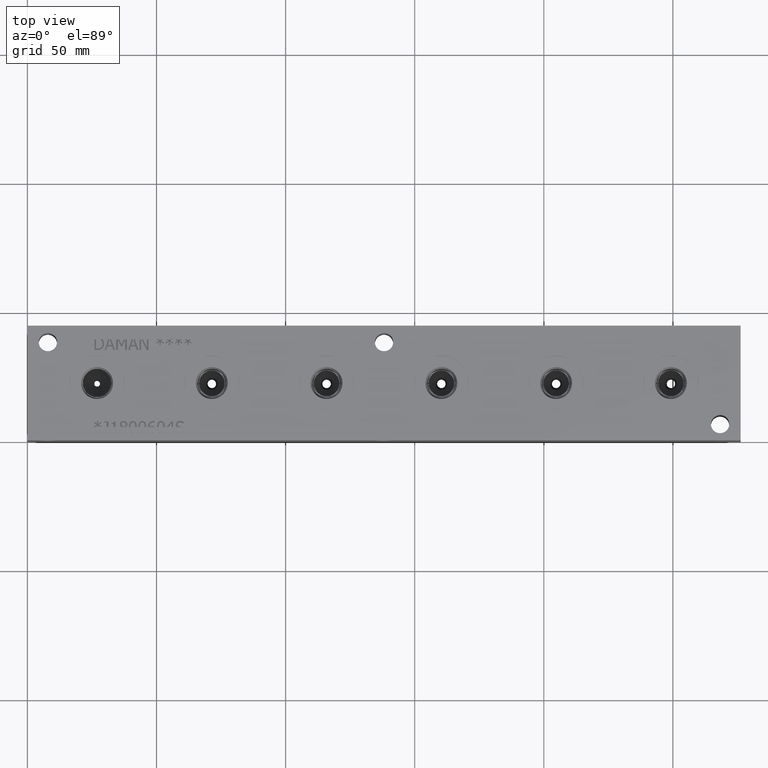
[diagram: clean part render]
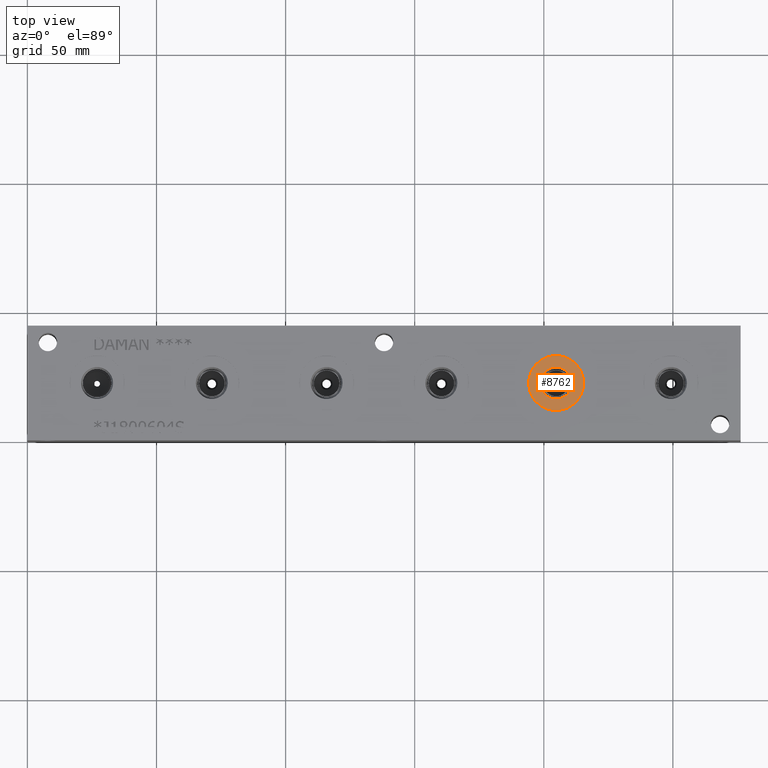
[diagram: same view with one face highlighted and labeled with its STEP entity id]
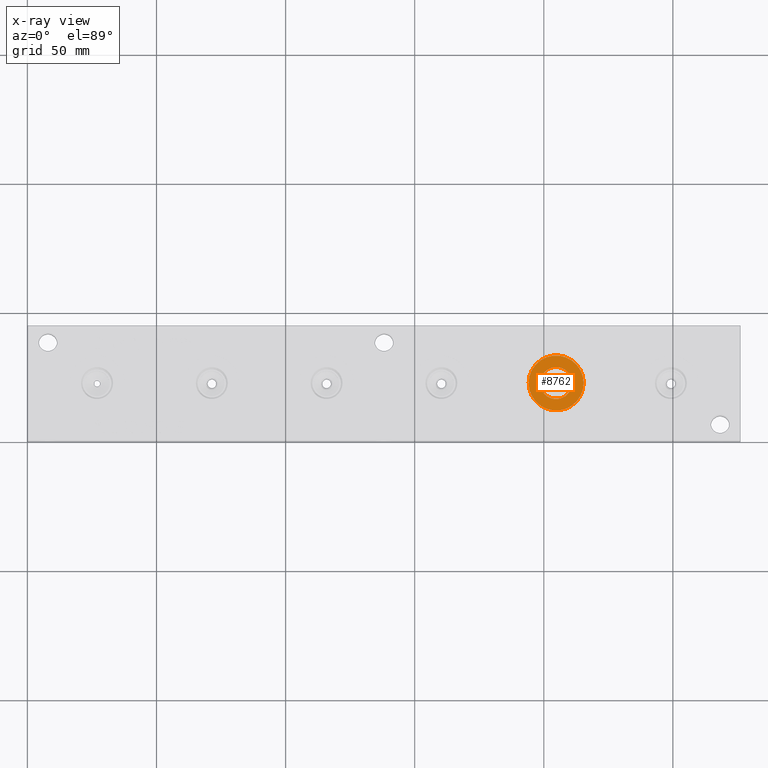
[diagram: x-ray of the same camera — body ghosted, the highlighted face saturated]
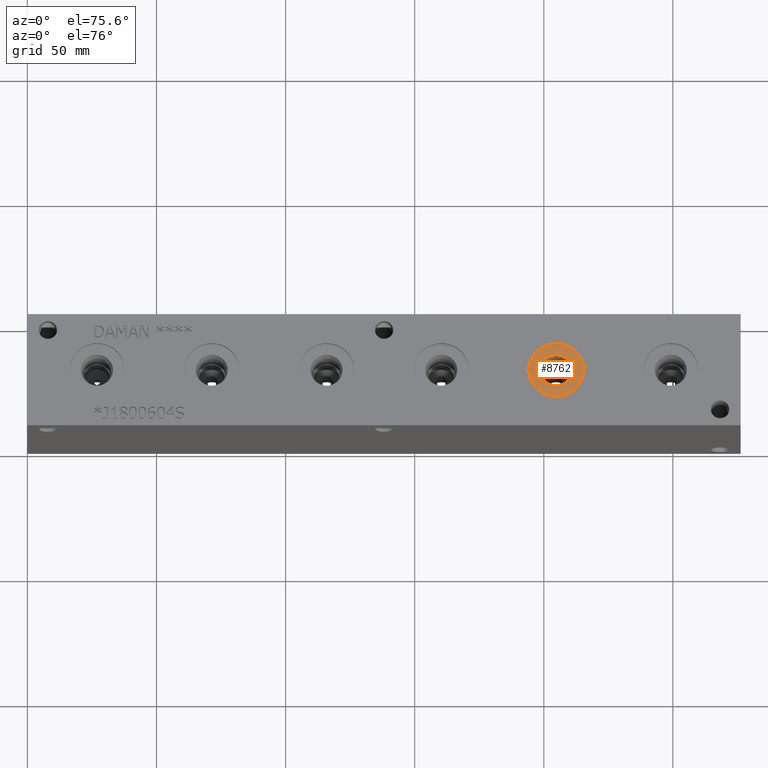
[diagram: same view with one face highlighted and labeled with its STEP entity id]
A machine part, top view. The second image highlights one B-rep face of the part: STEP entity #8762.
The next image is the same camera in x-ray: the body ghosted, the highlighted face saturated — about 0% of this face is hidden behind the body in this view.
A second angle (auxiliary view) of the same face is appended — the face is thin or edge-on in the first view.
In plain terms, the highlighted planar face has unit normal (0, 0, 1).
Its self-contained STEP definition (entity closure, byte-faithful):
#343=CIRCLE('',#9345,10.6426);
#344=CIRCLE('',#9346,10.6426);
#345=CIRCLE('',#9347,6.1976);
#428=FACE_BOUND('',#1634,.T.);
#676=PLANE('',#9344);
#1116=FACE_OUTER_BOUND('',#1633,.T.);
#1633=EDGE_LOOP('',(#7745,#7746));
#1634=EDGE_LOOP('',(#7747));
#4224=VERTEX_POINT('',#15102);
#4225=VERTEX_POINT('',#15103);
#4226=VERTEX_POINT('',#15106);
#5421=EDGE_CURVE('',#4224,#4225,#343,.T.);
#5422=EDGE_CURVE('',#4225,#4224,#344,.T.);
#5423=EDGE_CURVE('',#4226,#4226,#345,.T.);
#7745=ORIENTED_EDGE('',*,*,#5421,.T.);
#7746=ORIENTED_EDGE('',*,*,#5422,.T.);
#7747=ORIENTED_EDGE('',*,*,#5423,.F.);
#8762=ADVANCED_FACE('',(#1116,#428),#676,.T.);
#9344=AXIS2_PLACEMENT_3D('',#15101,#11222,#11223);
#9345=AXIS2_PLACEMENT_3D('',#15104,#11224,#11225);
#9346=AXIS2_PLACEMENT_3D('',#15105,#11226,#11227);
#9347=AXIS2_PLACEMENT_3D('',#15107,#11228,#11229);
#11222=DIRECTION('center_axis',(0.,0.,1.));
#11223=DIRECTION('ref_axis',(1.,0.,0.));
#11224=DIRECTION('center_axis',(0.,0.,1.));
#11225=DIRECTION('ref_axis',(1.,0.,0.));
#11226=DIRECTION('center_axis',(0.,0.,1.));
#11227=DIRECTION('ref_axis',(1.,0.,0.));
#11228=DIRECTION('center_axis',(0.,0.,1.));
#11229=DIRECTION('ref_axis',(1.,0.,0.));
#15101=CARTESIAN_POINT('Origin',(204.7748,22.225,43.6626));
#15102=CARTESIAN_POINT('',(215.4174,22.225,43.6626));
#15103=CARTESIAN_POINT('',(194.1322,22.225,43.6626));
#15104=CARTESIAN_POINT('Origin',(204.7748,22.225,43.6626));
#15105=CARTESIAN_POINT('Origin',(204.7748,22.225,43.6626));
#15106=CARTESIAN_POINT('',(198.5772,22.225,43.6626));
#15107=CARTESIAN_POINT('Origin',(204.7748,22.225,43.6626));